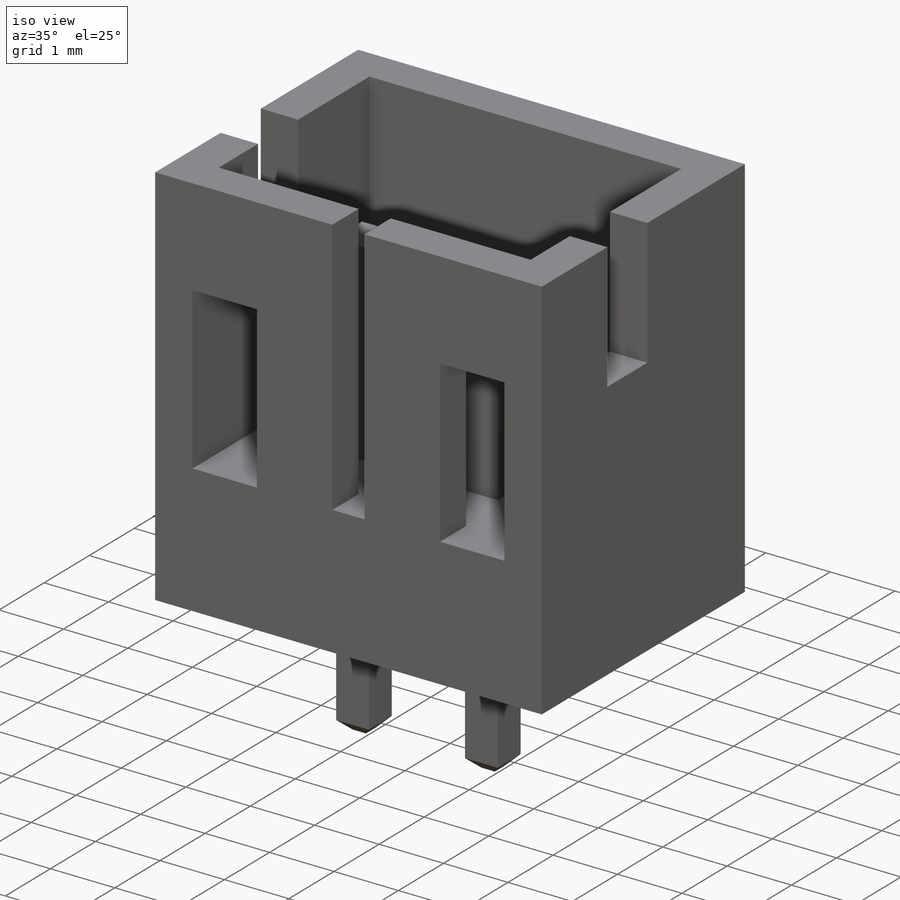
[diagram: iso view]
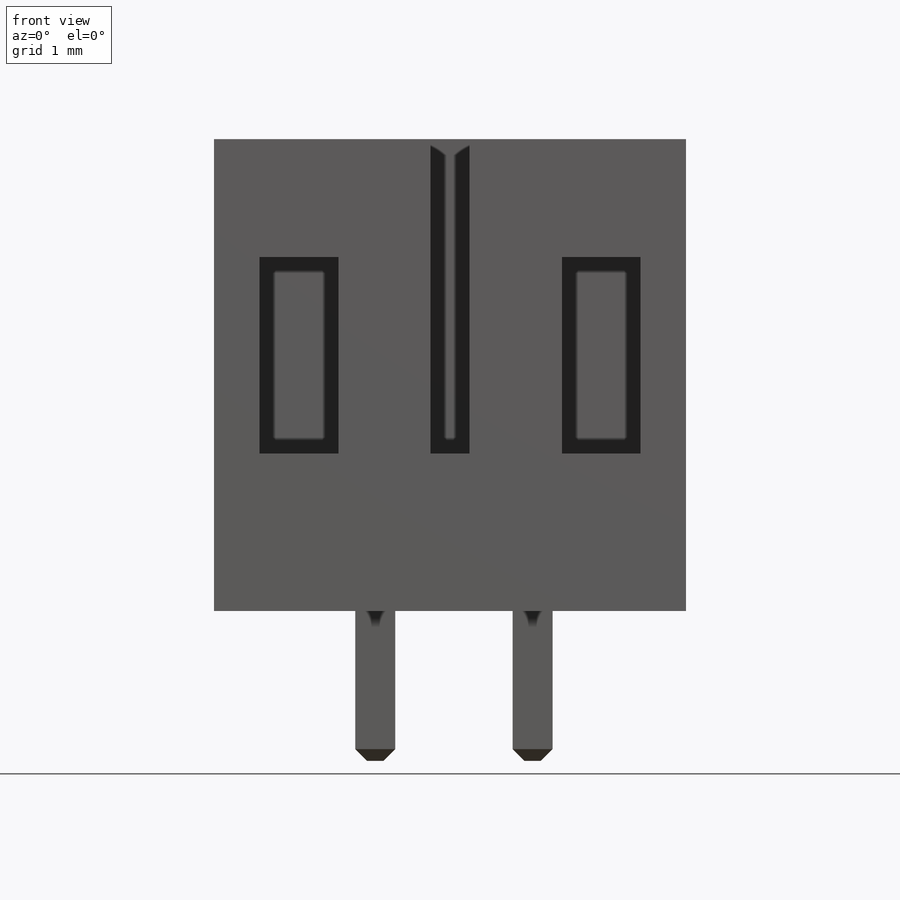
[diagram: front view]
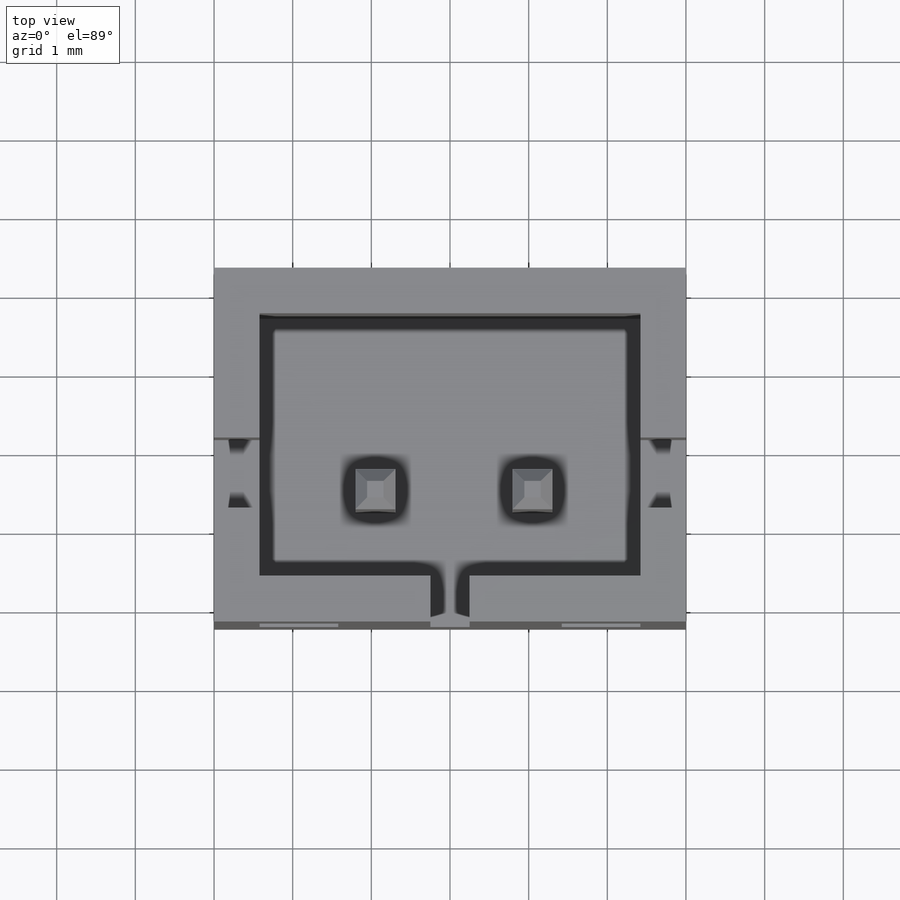
[diagram: top view]
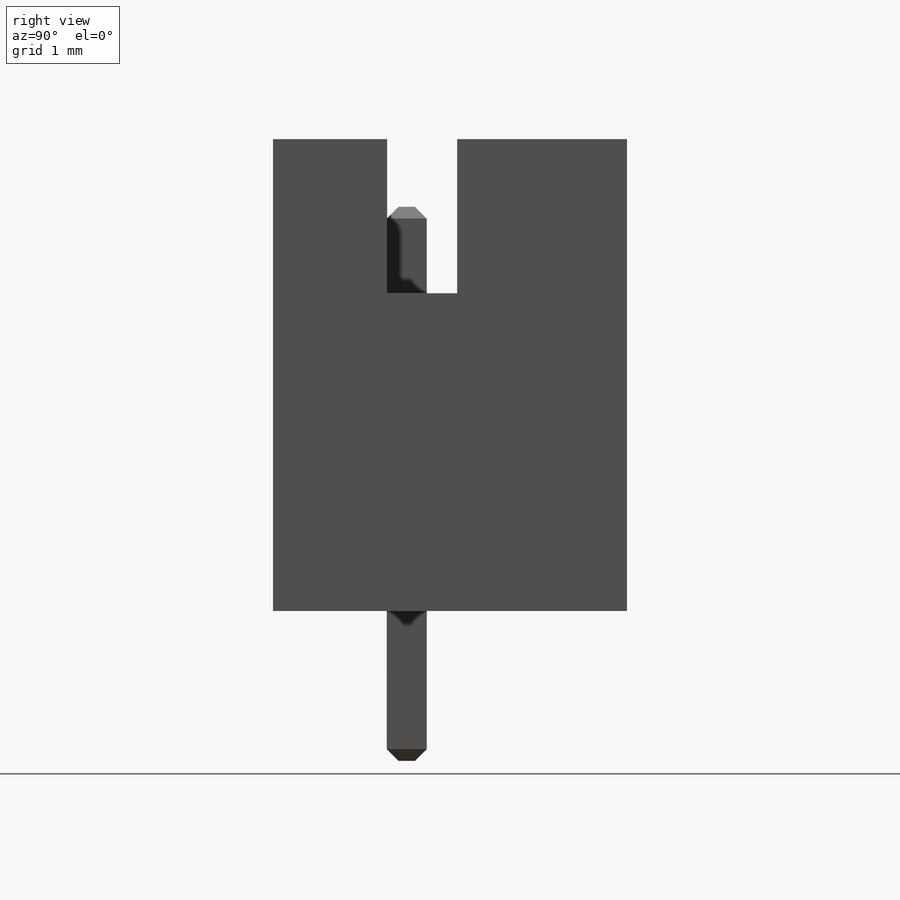
[diagram: right view]
SOLIDWORKS PART (.sldprt)
format: sldprt  version: not decoded by parser v0  size: 395,264 bytes
history: native  units: mm
features: sketch x4, extrude x2, cut_extrude x2, material x1, shell x1, plane x1, chamfer x1, pattern_linear x1 + 1 further entry (+10 scaffold rows collapsed)
feature tree (24):
  scaffold x10  (default folders/planes/origin — collapsed)
  material  "Material <not specified>"
  "Annotations"  RD1=23.372651mm
  sketch  "Sketch4"  dims[D1=13.8938mm D2=5.9944mm D3=5.08mm D4=6.0mm D5=2.54mm D6=0.127mm D7=4.5mm D8=9.525mm]
  extrude  "Body-Extrude2"  Depth=6mm
  shell  "Body-Shell1"  Thickness=0.58mm
  sketch  "Sketch66"  dims[c1.D1=~1.55885mm c1.D2=~1.724937mm c2.D1=0.89mm c2.D2=1.95mm c2.D3=~6.555452mm c2.D4=~3.162194mm c3.D1=0.89mm c3.D2=1.96mm c3.D3=1.45mm]
  cut_extrude  "Extrude3"  [1 undecoded]
  sketch  "Sketch65"  dims[c1.D1=2.75mm c1.D2=4.0mm c1.D3=1.0mm c2.D2=2.5mm]
  cut_extrude  "Extrude2"  [1 undecoded]
  plane  "Pins-Plane"  Offset=0.86mm
  sketch  "Sketch64"  dims[c1.D1=1.016mm c1.D2=0.508mm c1.D3=1.492mm c2.D1=1.7mm c2.D4=1.95mm c2.D3=1.95mm c3.D1=1.7mm c3.D3=1.95mm]
  extrude  "Pins-Extrude"  Depth=1.905mm
  chamfer  "Pins-Chamfer"  Distance=0.15mm Angle=45deg
  pattern_linear  "Pins-LPattern"  Count1=2 Count2=1 Spacing1=2mm Spacing2=10mm
decode coverage: 9 of 11 modeling features carry decoded parameters; 1 rows unclassified (native names shown)
note: ~ marks probable driven/reference dimensions
note: 2 parameter values undecoded
note: suppression state not decoded; provenance and decode notes live in map.json
